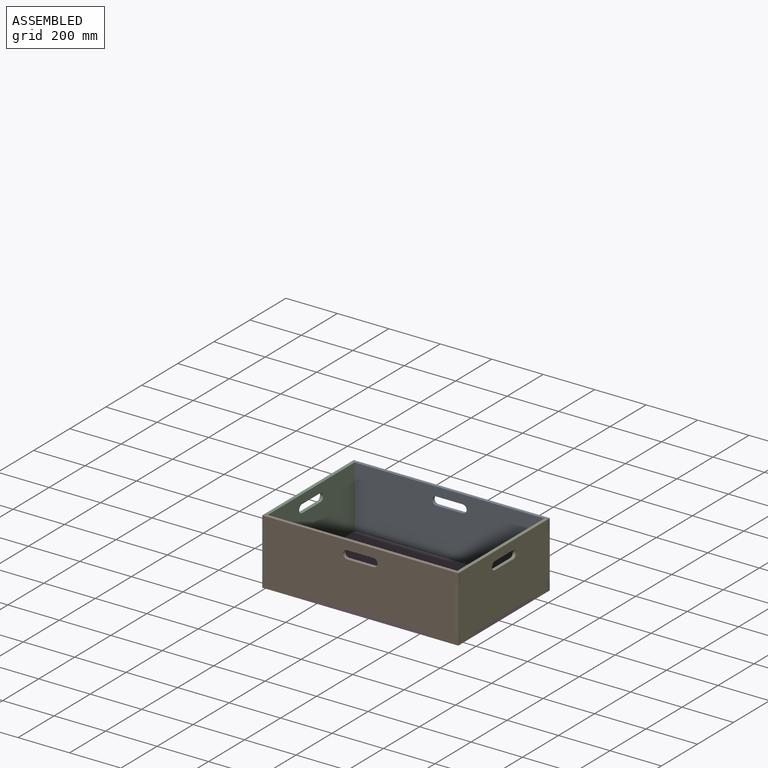
[diagram: assembled view]
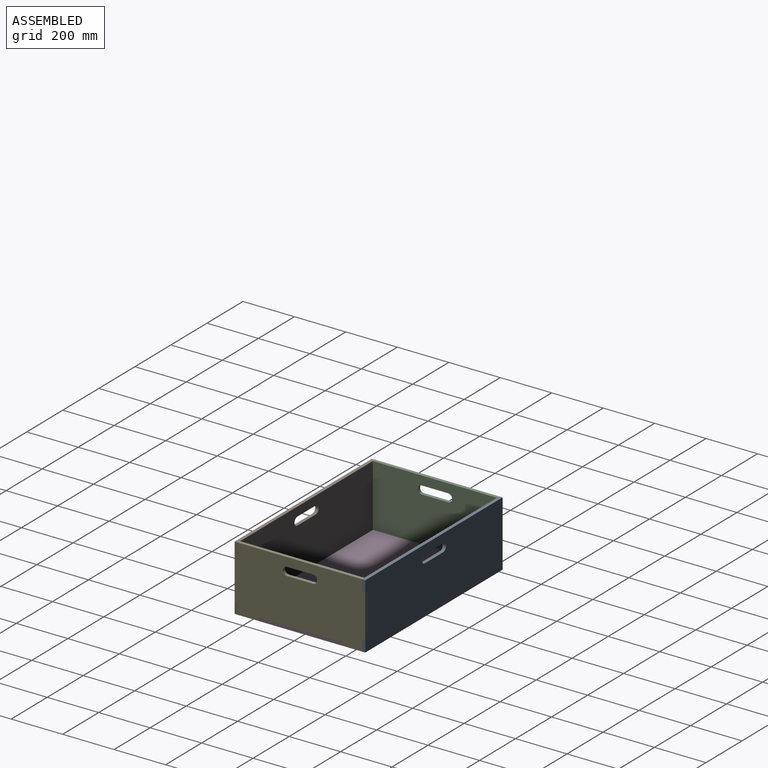
[diagram: assembled view, second angle]
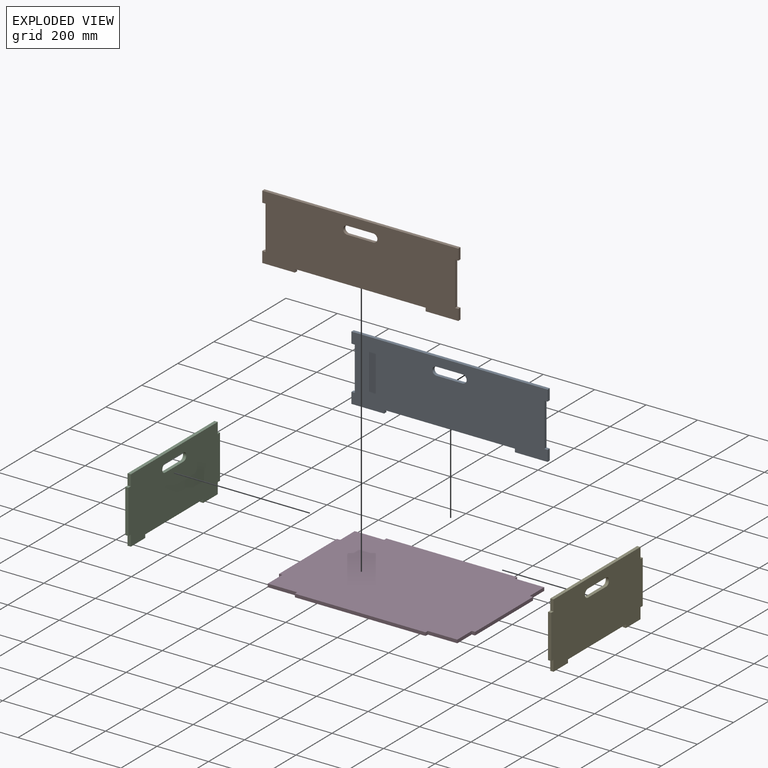
[diagram: exploded view]
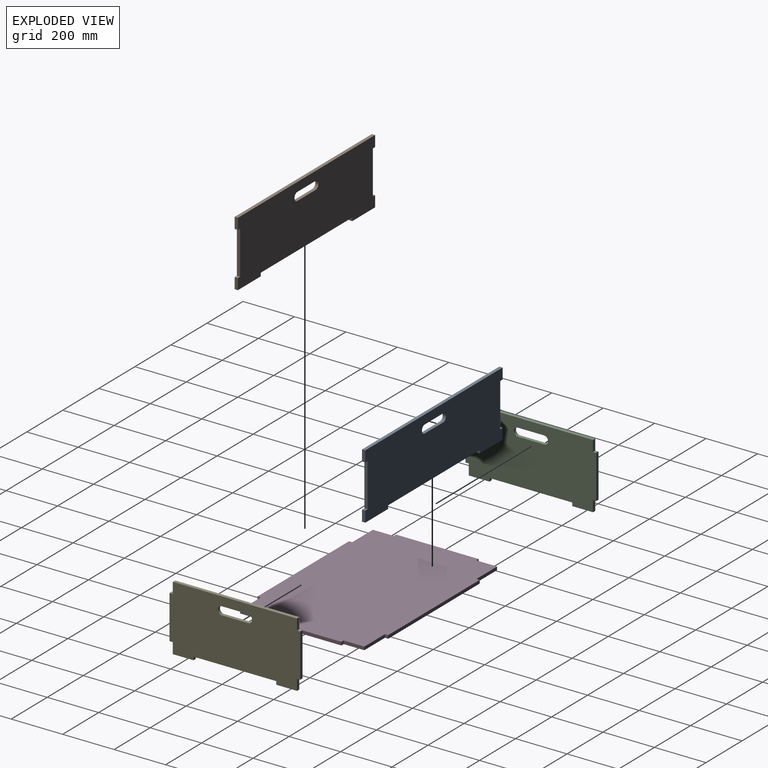
[diagram: exploded view, second angle]
ASSEMBLY  parts=5 mates=4
PART A: 22 faces, bbox 762x254x12.7 mm
  f0: plane 169.33x12.7mm, normal (1,0,0), area 2150.5mm2, adj f1,f19,f20,f21
  f1: plane 12.7x12.7mm, normal (0,-1,0), area 161.3mm2, adj f0,f2,f20,f21
  f2: plane 42.33x12.7mm, normal (1,0,0), area 537.6mm2, adj f1,f3,f20,f21
  f3: plane 762x12.7mm, normal (0,1,0), area 9677.4mm2, adj f2,f4,f20,f21
  f4: plane 42.33x12.7mm, normal (-1,0,0), area 537.6mm2, adj f3,f5,f20,f21
  f5: plane 12.7x12.7mm, normal (0,-1,0), area 161.3mm2, adj f4,f6,f20,f21
  f6: plane 169.33x12.7mm, normal (-1,0,0), area 2150.5mm2, adj f5,f7,f20,f21
  f7: plane 12.7x12.7mm, normal (0,1,0), area 161.3mm2, adj f6,f8,f20,f21
  f8: plane 42.33x12.7mm, normal (-1,0,0), area 537.6mm2, adj f7,f9,f20,f21
  f9: plane 127x12.7mm, normal (0,-1,0), area 1612.9mm2, adj f8,f10,f20,f21
  f10: plane 12.7x12.7mm, normal (1,0,0), area 161.3mm2, adj f9,f11,f20,f21
  f11: plane 508x12.7mm, normal (0,-1,0), area 6451.6mm2, adj f10,f12,f20,f21
  f12: plane 12.7x12.7mm, normal (-1,0,0), area 161.3mm2, adj f11,f13,f20,f21
  f13: plane 127x12.7mm, normal (0,-1,0), area 1612.9mm2, adj f12,f14,f20,f21
  f14: plane 42.33x12.7mm, normal (1,0,0), area 537.6mm2, adj f13,f19,f20,f21
  f15: cylinder r=15.88mm len=31.75mm, axis (0,0,-1), area 633.4mm2, adj f16,f18,f20,f21
  f16: plane 101.6x12.7mm, normal (0,-1,0), area 1290.3mm2, adj f15,f17,f20,f21
  f17: cylinder r=15.88mm len=31.75mm, axis (0,0,-1), area 633.4mm2, adj f16,f18,f20,f21
  f18: plane 101.6x12.7mm, normal (0,1,0), area 1290.3mm2, adj f15,f17,f20,f21
  f19: plane 12.7x12.7mm, normal (0,1,0), area 161.3mm2, adj f0,f14,f20,f21
  f20: plane 762x254mm, normal (0,0,1), area 178777.8mm2, adj f0,f1,f2,f3,f4,f5,f6,f7
  f21: plane 762x254mm, normal (0,0,-1), area 178777.8mm2, adj f0,f1,f2,f3,f4,f5,f6,f7
PART B: same geometry as A
PART C: 22 faces, bbox 508x254x12.7 mm
  f0: plane 80.43x12.7mm, normal (0,-1,0), area 1021.5mm2, adj f1,f19,f20,f21
  f1: plane 12.7x12.7mm, normal (1,0,0), area 161.3mm2, adj f0,f2,f20,f21
  f2: plane 321.73x12.7mm, normal (0,-1,0), area 4086mm2, adj f1,f3,f20,f21
  f3: plane 12.7x12.7mm, normal (-1,0,0), area 161.3mm2, adj f2,f4,f20,f21
  f4: plane 80.43x12.7mm, normal (0,-1,0), area 1021.5mm2, adj f3,f5,f20,f21
  f5: plane 42.33x12.7mm, normal (1,0,0), area 537.6mm2, adj f4,f6,f20,f21
  f6: plane 12.7x12.7mm, normal (0,-1,0), area 161.3mm2, adj f5,f7,f20,f21
  f7: plane 169.33x12.7mm, normal (1,0,0), area 2150.5mm2, adj f6,f8,f20,f21
  f8: plane 12.7x12.7mm, normal (0,1,0), area 161.3mm2, adj f7,f9,f20,f21
  f9: plane 42.33x12.7mm, normal (1,0,0), area 537.6mm2, adj f8,f10,f20,f21
  f10: plane 482.6x12.7mm, normal (0,1,0), area 6129mm2, adj f9,f11,f20,f21
  f11: plane 42.33x12.7mm, normal (-1,0,0), area 537.6mm2, adj f10,f12,f20,f21
  f12: plane 12.7x12.7mm, normal (0,1,0), area 161.3mm2, adj f11,f13,f20,f21
  f13: plane 169.33x12.7mm, normal (-1,0,0), area 2150.5mm2, adj f12,f14,f20,f21
  f14: plane 12.7x12.7mm, normal (0,-1,0), area 161.3mm2, adj f13,f19,f20,f21
  f15: cylinder r=15.88mm len=31.75mm, axis (0,0,-1), area 633.4mm2, adj f16,f18,f20,f21
  f16: plane 101.6x12.7mm, normal (0,-1,0), area 1290.3mm2, adj f15,f17,f20,f21
  f17: cylinder r=15.88mm len=31.75mm, axis (0,0,-1), area 633.4mm2, adj f16,f18,f20,f21
  f18: plane 101.6x12.7mm, normal (0,1,0), area 1290.3mm2, adj f15,f17,f20,f21
  f19: plane 42.33x12.7mm, normal (-1,0,0), area 537.6mm2, adj f0,f14,f20,f21
  f20: plane 508x254mm, normal (0,0,1), area 118777.9mm2, adj f0,f1,f2,f3,f4,f5,f6,f7
  f21: plane 508x254mm, normal (0,0,-1), area 118777.9mm2, adj f0,f1,f2,f3,f4,f5,f6,f7
PART D: 22 faces, bbox 762x508x12.7 mm
  f0: plane 80.43x12.7mm, normal (1,0,0), area 1021.5mm2, adj f1,f19,f20,f21
  f1: plane 12.7x12.7mm, normal (0,-1,0), area 161.3mm2, adj f0,f2,f20,f21
  f2: plane 321.73x12.7mm, normal (1,0,0), area 4086mm2, adj f1,f3,f20,f21
  f3: plane 12.7x12.7mm, normal (0,1,0), area 161.3mm2, adj f2,f4,f20,f21
  f4: plane 80.43x12.7mm, normal (1,0,0), area 1021.5mm2, adj f3,f5,f20,f21
  f5: plane 114.3x12.7mm, normal (0,1,0), area 1451.6mm2, adj f4,f6,f20,f21
  f6: plane 12.7x12.7mm, normal (1,0,0), area 161.3mm2, adj f5,f7,f20,f21
  f7: plane 508x12.7mm, normal (0,1,0), area 6451.6mm2, adj f6,f8,f20,f21
  f8: plane 12.7x12.7mm, normal (-1,0,0), area 161.3mm2, adj f7,f9,f20,f21
  f9: plane 114.3x12.7mm, normal (0,1,0), area 1451.6mm2, adj f8,f10,f20,f21
  f10: plane 80.43x12.7mm, normal (-1,0,0), area 1021.5mm2, adj f9,f11,f20,f21
  f11: plane 12.7x12.7mm, normal (0,1,0), area 161.3mm2, adj f10,f12,f20,f21
  f12: plane 321.68x12.7mm, normal (-1,0,0), area 4085.3mm2, adj f11,f13,f20,f21
  f13: plane 12.7x12.7mm, normal (0,-1,0), area 161.3mm2, adj f12,f14,f20,f21
  f14: plane 80.43x12.7mm, normal (-1,0,0), area 1021.5mm2, adj f13,f15,f20,f21
  f15: plane 114.3x12.7mm, normal (0,-1,0), area 1451.6mm2, adj f14,f16,f20,f21
  f16: plane 12.7x12.7mm, normal (-1,0,0), area 161.3mm2, adj f15,f17,f20,f21
  f17: plane 508x12.7mm, normal (0,-1,0), area 6451.6mm2, adj f16,f18,f20,f21
  f18: plane 12.7x12.7mm, normal (1,0,0), area 161.3mm2, adj f17,f19,f20,f21
  f19: plane 114.3x12.7mm, normal (0,-1,0), area 1451.6mm2, adj f0,f18,f20,f21
  f20: plane 762x508mm, normal (0,0,1), area 376558.1mm2, adj f0,f1,f2,f3,f4,f5,f6,f7
  f21: plane 762x508mm, normal (0,0,-1), area 376558.1mm2, adj f0,f1,f2,f3,f4,f5,f6,f7
PART E: same geometry as C
PLACE A rot(axis=(1,0,0),90deg) t=(-287.6,254,-612.1)mm
PLACE B rot(axis=(1,0,0),90deg) t=(-287.6,-241.3,-612.1)mm
PLACE C rot(axis=(0.58,0.58,0.58),120deg) t=(-393.7,807.69,-48.1)mm
PLACE D t=(-287.6,395.61,-12.7)mm fixed
PLACE E rot(axis=(0.58,0.58,0.58),120deg) t=(355.6,807.66,-48.1)mm
MATE fastened B.f11 <-> D.f20  axis (0,0,-1) through (-12.7,-254,0)mm
MATE fastened A.f11 <-> D.f20  axis (0,0,-1) through (-12.7,254,0)mm
MATE fastened C.f2 <-> D.f20  axis (0,0,-1) through (-393.7,0.03,0)mm
MATE fastened D.f20 <-> E.f2  axis (0,0,1) through (368.3,0,0)mm
